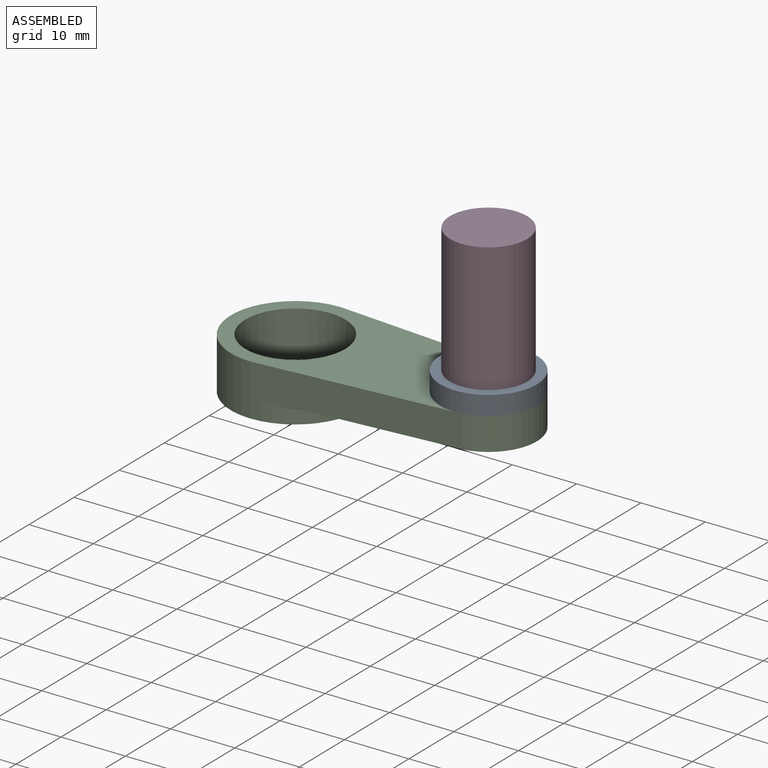
[diagram: assembled view]
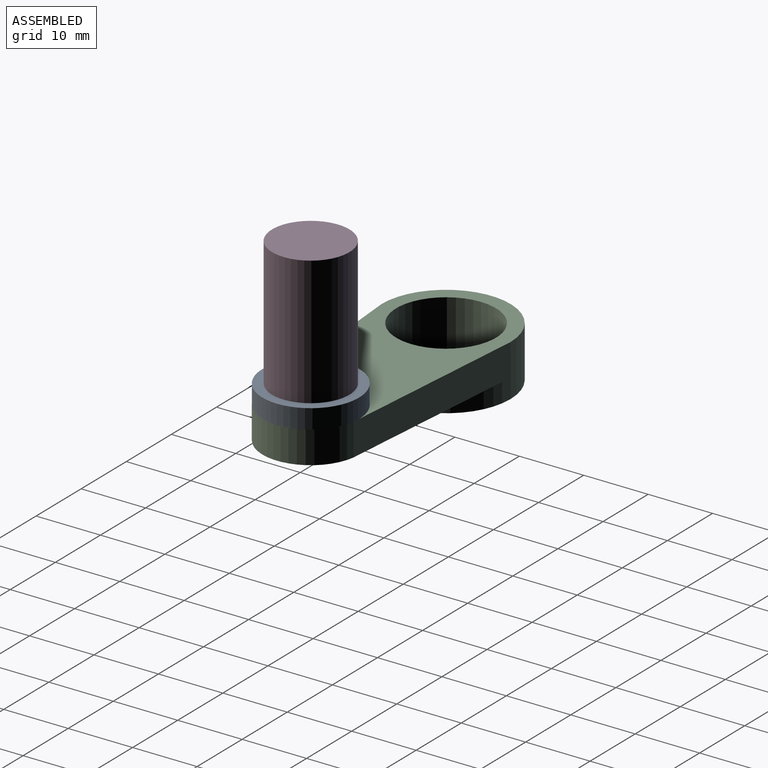
[diagram: assembled view, second angle]
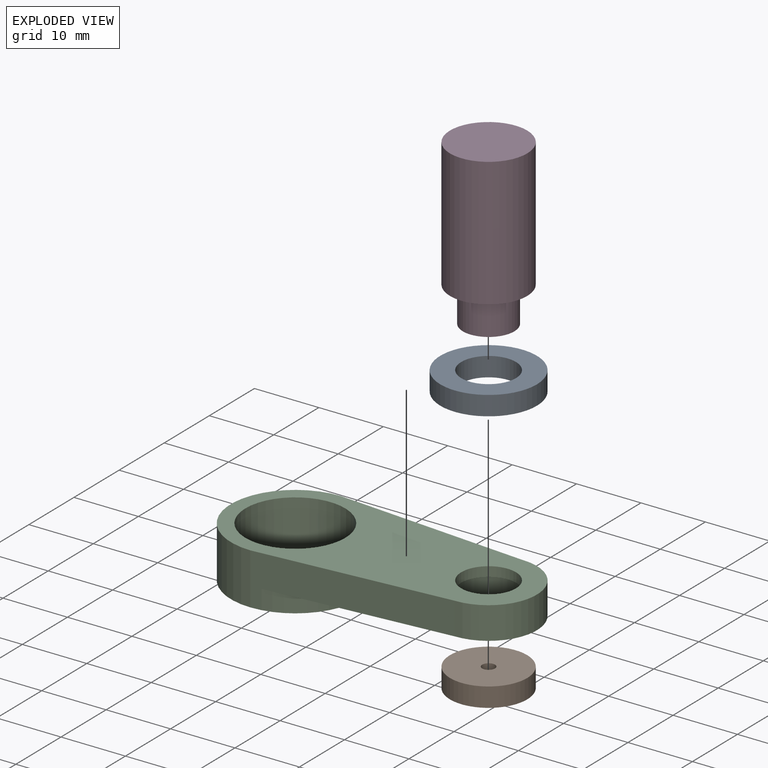
[diagram: exploded view]
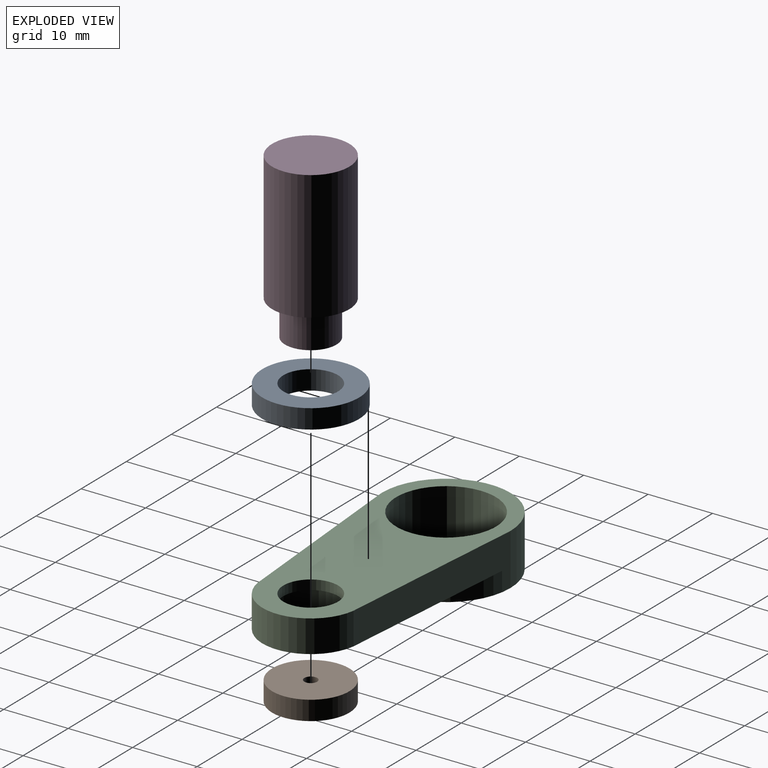
[diagram: exploded view, second angle]
ASSEMBLY  parts=4 mates=3
PART A: 4 faces, bbox 15x15x3 mm
  f0: cylinder r=4.25mm len=8.5mm, axis (0,0,-1), area 80.1mm2, adj f2,f3
  f1: cylinder r=7.5mm len=15mm, axis (0,0,-1), area 141.4mm2, adj f2,f3
  f2: plane 15x15mm, normal (0,0,1), area 120mm2, adj f0,f1
  f3: plane 15x15mm, normal (0,0,-1), area 120mm2, adj f0,f1
PART B: 4 faces, bbox 12x12x3 mm
  f0: cylinder r=1mm len=3mm, axis (0,0,-1), area 18.8mm2, adj f2,f3
  f1: cylinder r=6mm len=12mm, axis (0,0,-1), area 113.1mm2, adj f2,f3
  f2: plane 12x12mm, normal (0,0,1), area 110mm2, adj f0,f1
  f3: plane 12x12mm, normal (0,0,-1), area 110mm2, adj f0,f1
PART C: 12 faces, bbox 47.5x20x8 mm
  f0: plane 30x8mm, normal (0.08,-1,0), area 155.5mm2, adj f1,f3,f6,f7,f8,f9
  f1: cylinder r=7.5mm len=15mm, axis (0,0,-1), area 117.8mm2, adj f0,f2,f6,f7
  f2: plane 30x8mm, normal (0.08,1,0), area 155.5mm2, adj f1,f3,f6,f7,f8,f9
  f3: cylinder r=10mm len=20mm, axis (0,0,-1), area 251.3mm2, adj f0,f2,f6,f9
  f4: cylinder r=7.75mm len=15.5mm, axis (0,0,-1), area 389.6mm2, adj f6,f9
  f5: cylinder r=4.25mm len=8.5mm, axis (0,0,-1), area 40.1mm2, adj f6,f11
  f6: plane 47.5x20mm, normal (0,0,1), area 525mm2, adj f0,f1,f2,f3,f4,f5
  f7: plane 35.85x19.72mm, normal (0,0,-1), area 333.6mm2, adj f0,f1,f2,f8,f10
  f8: cylinder r=10mm len=19.72mm, axis (0,0,1), area 84.3mm2, adj f0,f2,f7,f9
  f9: plane 20x20mm, normal (0,0,-1), area 125.4mm2, adj f0,f2,f3,f4,f8
  f10: cylinder r=6.25mm len=12.5mm, axis (0,0,-1), area 137.4mm2, adj f7,f11
  f11: plane 12.5x12.5mm, normal (0,0,-1), area 66mm2, adj f5,f10
PART D: 7 faces, bbox 12x12x25.5 mm
  f0: cylinder r=6mm len=20mm, axis (0,0,-1), area 754mm2, adj f1,f2
  f1: plane 12x12mm, normal (0,0,1), area 113.1mm2, adj f0
  f2: plane 12x12mm, normal (0,0,-1), area 62.8mm2, adj f0,f4
  f3: cylinder r=1mm len=5.5mm, axis (0,0,1), area 34.6mm2, adj f5,f6
  f4: cylinder r=4mm len=8mm, axis (0,0,1), area 138.2mm2, adj f2,f5
  f5: plane 8x8mm, normal (0,0,-1), area 47.1mm2, adj f3,f4
  f6: plane 2x2mm, normal (0,0,-1), area 3.1mm2, adj f3
PLACE A t=(17.19,11.69,-12.53)mm
PLACE B rot(axis=(0,0,-1),170deg) t=(17.19,11.69,-18.03)mm
PLACE C t=(-12.81,11.69,-17.53)mm
PLACE D rot(axis=(0,0,-1),170deg) t=(17.19,11.69,-9.53)mm
MATE fastened A.f1 <-> C.f1  axis (0,0,-1) through (17.19,11.69,-12.53)mm
MATE revolute A.f1 <-> D.f0  axis (0,0,1) through (17.19,11.69,-9.53)mm
MATE fastened D.f4 <-> B.f1  axis (0,0,-1) through (17.19,11.69,-15.03)mm
